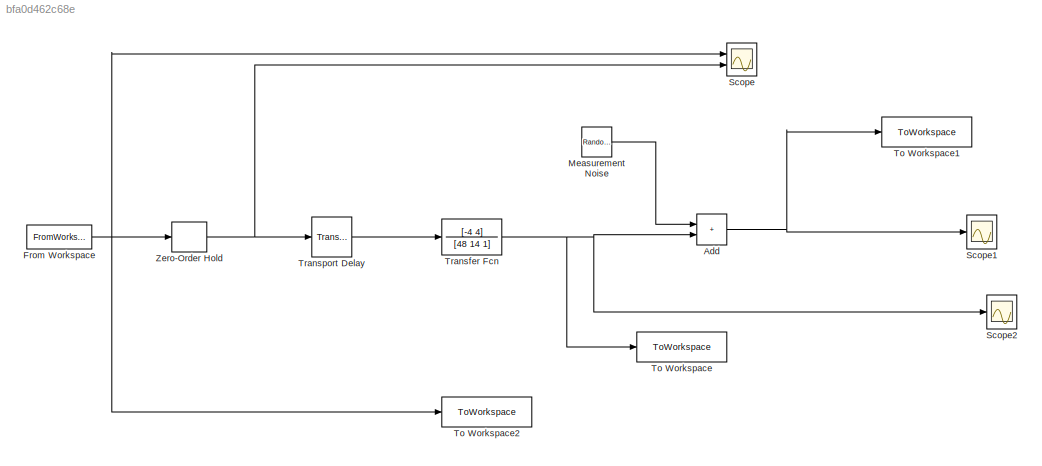
MODEL slx_bfa0d462c68e
KIND model
CONFIG AbsTol = auto
CONFIG EnableMultiTasking = off
CONFIG FixedStep = auto
CONFIG MaxStep = auto
CONFIG MinStep = auto
CONFIG RelTol = 1e-3
CONFIG SampleTimeConstraint = Unconstrained
CONFIG SolverName = VariableStepAuto
CONFIG StartTime = 0.0
CONFIG StopTime = (N-1)*Ts
WORKSPACE source: MATLAB code (in-file)
WORKSPACE Gprocess = tf([-4 4],conv([6 1],[8 1]),'iodelay',2)
WORKSPACE Ts = 0.8
WORKSPACE N = 2555
WORKSPACE u = idinput(N,'PRBS',[0 0.2],[-2 2])
WORKSPACE t = 0:Ts:Ts*(N-1)
WORKSPACE input_moves = [t' u]
BLOCK [Sum] Add
  IconShape = rectangular
  Ports = [2, 1]
BLOCK [FromWorkspace] From Workspace
  SampleTime = Ts
  VariableName = input_moves
BLOCK [RandomNumber] Measurement Noise
  SampleTime = Ts
  Variance = 1.2
BLOCK [Scope] Scope
  Floating = off
  NumInputPorts = 2
  Ports = [2]
  ScopeSpecificationString = Simulink.scopes.TimeScopeBlockCfg('CurrentConfiguration', extmgr.ConfigurationSet(extmgr.Configuration('Core','General UI',true),extmgr.Configuration('Core','Source UI',true),extmgr.Configuration('Sources','WiredSimulink',true),extmgr.Configuration('Visuals','Time Domain',true,'SerializedDisplays',{struct('MinYLimReal','-2.5','MaxYLimReal','2.5','YLabelReal','','MinYLimMag','0.00000','MaxYLimMag',...<+1383ch>
BLOCK [Scope] Scope1
  Floating = off
  NumInputPorts = 1
  Ports = [1]
  ScopeSpecificationString = Simulink.scopes.TimeScopeBlockCfg('CurrentConfiguration', extmgr.ConfigurationSet(extmgr.Configuration('Core','General UI',true),extmgr.Configuration('Core','Source UI',true),extmgr.Configuration('Sources','WiredSimulink',true,'DataLoggingVariableName','ScopeData1'),extmgr.Configuration('Visuals','Time Domain',true,'SerializedDisplays',{struct('MinYLimReal','-13.02263','MaxYLimReal','12.02092','YL...<+1401ch>
BLOCK [Scope] Scope2
  Floating = off
  NumInputPorts = 1
  Ports = [1]
  ScopeSpecificationString = Simulink.scopes.TimeScopeBlockCfg('CurrentConfiguration', extmgr.ConfigurationSet(extmgr.Configuration('Core','General UI',true),extmgr.Configuration('Core','Source UI',true),extmgr.Configuration('Sources','WiredSimulink',true,'DataLoggingVariableName','ScopeData2'),extmgr.Configuration('Visuals','Time Domain',true,'SerializedDisplays',{struct('MinYLimReal','-9.78957','MaxYLimReal','9.69938','YLab...<+1404ch>
BLOCK [ToWorkspace] To Workspace
  FixptAsFi = on
  MaxDataPoints = inf
  Ports = [1]
  SampleTime = Ts
  SaveFormat = Timeseries
  VariableName = ytrue
BLOCK [ToWorkspace] To Workspace1
  FixptAsFi = on
  MaxDataPoints = inf
  Ports = [1]
  SampleTime = Ts
  SaveFormat = Timeseries
  VariableName = ymeas
BLOCK [ToWorkspace] To Workspace2
  FixptAsFi = on
  MaxDataPoints = inf
  Ports = [1]
  SampleTime = Ts
  SaveFormat = Timeseries
  VariableName = inputs
BLOCK [TransferFcn] Transfer Fcn
  Denominator = [48 14 1]
  Numerator = [-4 4]
BLOCK [TransportDelay] Transport Delay
  DelayTime = 2
  Ports = [1, 1]
BLOCK [ZeroOrderHold] Zero-Order Hold
  SampleTime = Ts
NET Add:1 -> Scope1:1, To Workspace1:1
NET From Workspace:1 -> Scope:1, To Workspace2:1, Zero-Order Hold:1
LINE Measurement Noise:1 -> Add:1
NET Transfer Fcn:1 -> Add:2, Scope2:1, To Workspace:1
LINE Transport Delay:1 -> Transfer Fcn:1
NET Zero-Order Hold:1 -> Scope:2, Transport Delay:1
note: NET lines group one-source signal fan-out (src -> all destinations, sorted); 1:1 wires keep LINE
